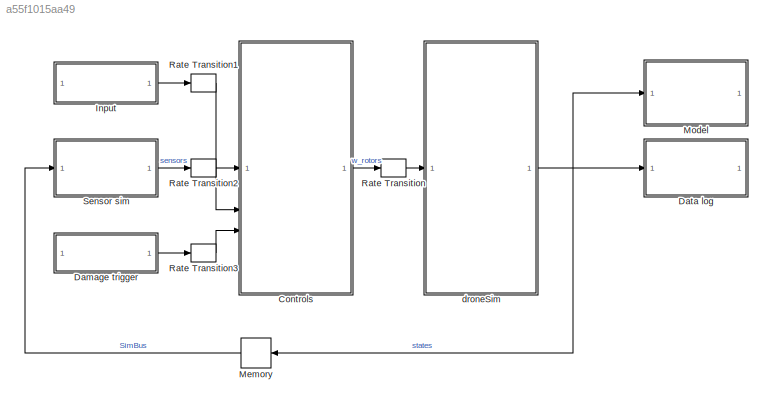
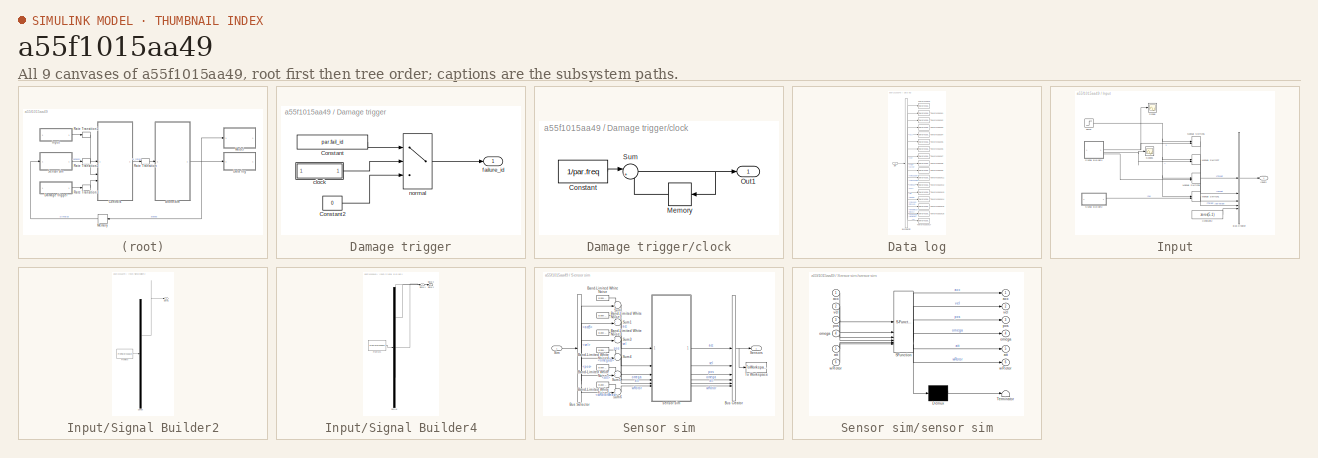
[diagram: thumbnail index - all 9 canvases of the model, root first then tree order]
MODEL slx_a55f1015aa49
KIND model
CONFIG AbsTol = auto
CONFIG EnableMultiTasking = off
CONFIG FixedStep = 1/simVars.freq
CONFIG MaxStep = auto
CONFIG MinStep = auto
CONFIG RelTol = 1e-3
CONFIG SampleTimeConstraint = Unconstrained
CONFIG SolverName = FixedStepAuto
CONFIG StartTime = 0.0
CONFIG StopTime = 20
BLOCK [ModelReference] Controls
  ModelNameDialog = controls.slx
  ModelReferenceVersion = 6.2
BLOCK [SubSystem] Damage trigger
BLOCK [Constant] Damage trigger/Constant
  Value = par.fail_id
BLOCK [Constant] Damage trigger/Constant2
  Value = 0
BLOCK [SubSystem] Damage trigger/clock
BLOCK [Constant] Damage trigger/clock/Constant
  Value = 1/par.freq
BLOCK [Memory] Damage trigger/clock/Memory
  NameLocation = top
BLOCK [Outport] Damage trigger/clock/Out1
  VectorParamsAs1DForOutWhenUnconnected = off
BLOCK [Sum] Damage trigger/clock/Sum
  Inputs = |++
BLOCK [Outport] Damage trigger/failure_id
  VectorParamsAs1DForOutWhenUnconnected = off
BLOCK [Switch] Damage trigger/normal
  Criteria = u2 > Threshold
  InputSameDT = off
  SaturateOnIntegerOverflow = off
  Threshold = par.fail_time
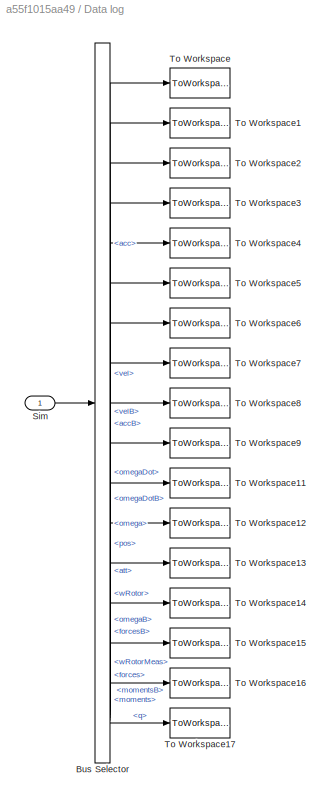
BLOCK [SubSystem] Data log
BLOCK [BusSelector] Data log/Bus Selector
  OutputSignals = acc,accB,vel,velB,pos,omegaDot,omegaDotB,omega,omegaB,att,wRotor,wRotorMeas,forces,forcesB,moments,momentsB,q
BLOCK [Inport] Data log/Sim
BLOCK [ToWorkspace] Data log/To Workspace
  FixptAsFi = on
  MaxDataPoints = inf
  SampleTime = -1
  SaveFormat = Timeseries
  VariableName = acc
BLOCK [ToWorkspace] Data log/To Workspace1
  FixptAsFi = on
  MaxDataPoints = inf
  SampleTime = -1
  SaveFormat = Timeseries
  VariableName = accB
BLOCK [ToWorkspace] Data log/To Workspace11
  FixptAsFi = on
  MaxDataPoints = inf
  SampleTime = -1
  SaveFormat = Timeseries
  VariableName = wRotor
BLOCK [ToWorkspace] Data log/To Workspace12
  FixptAsFi = on
  MaxDataPoints = inf
  SampleTime = -1
  SaveFormat = Timeseries
  VariableName = wRotorMeas
BLOCK [ToWorkspace] Data log/To Workspace13
  FixptAsFi = on
  MaxDataPoints = inf
  SampleTime = -1
  SaveFormat = Timeseries
  VariableName = forces
BLOCK [ToWorkspace] Data log/To Workspace14
  FixptAsFi = on
  MaxDataPoints = inf
  SampleTime = -1
  SaveFormat = Timeseries
  VariableName = forcesB
BLOCK [ToWorkspace] Data log/To Workspace15
  FixptAsFi = on
  MaxDataPoints = inf
  SampleTime = -1
  SaveFormat = Timeseries
  VariableName = moments
BLOCK [ToWorkspace] Data log/To Workspace16
  FixptAsFi = on
  MaxDataPoints = inf
  SampleTime = -1
  SaveFormat = Timeseries
  VariableName = momentsB
BLOCK [ToWorkspace] Data log/To Workspace17
  FixptAsFi = on
  MaxDataPoints = inf
  SampleTime = -1
  SaveFormat = Timeseries
  VariableName = quat
BLOCK [ToWorkspace] Data log/To Workspace2
  FixptAsFi = on
  MaxDataPoints = inf
  SampleTime = -1
  SaveFormat = Timeseries
  VariableName = vel
BLOCK [ToWorkspace] Data log/To Workspace3
  FixptAsFi = on
  MaxDataPoints = inf
  SampleTime = -1
  SaveFormat = Timeseries
  VariableName = velB
BLOCK [ToWorkspace] Data log/To Workspace4
  FixptAsFi = on
  MaxDataPoints = inf
  SampleTime = -1
  SaveFormat = Timeseries
  VariableName = pos
BLOCK [ToWorkspace] Data log/To Workspace5
  FixptAsFi = on
  MaxDataPoints = inf
  SampleTime = -1
  SaveFormat = Timeseries
  VariableName = omegaDot
BLOCK [ToWorkspace] Data log/To Workspace6
  FixptAsFi = on
  MaxDataPoints = inf
  SampleTime = -1
  SaveFormat = Timeseries
  VariableName = omegaDotB
BLOCK [ToWorkspace] Data log/To Workspace7
  FixptAsFi = on
  MaxDataPoints = inf
  SampleTime = -1
  SaveFormat = Timeseries
  VariableName = omega
BLOCK [ToWorkspace] Data log/To Workspace8
  FixptAsFi = on
  MaxDataPoints = inf
  SampleTime = -1
  SaveFormat = Timeseries
  VariableName = omegaB
BLOCK [ToWorkspace] Data log/To Workspace9
  FixptAsFi = on
  MaxDataPoints = inf
  SampleTime = -1
  SaveFormat = Timeseries
  VariableName = att
BLOCK [SubSystem] Input
BLOCK [BusCreator] Input/Bus Creator
  DisplayOption = bar
  InheritFromInputs = on
  Inputs = 5
  OutDataTypeStr = Bus: inputsBus
BLOCK [Constant] Input/Constant2
  Value = zeros(5,1)
BLOCK [Outport] Input/Inputs
  OutDataTypeStr = Bus: inputsBus
  VectorParamsAs1DForOutWhenUnconnected = off
BLOCK [ManualSwitch] Input/Manual Switch1
BLOCK [ManualSwitch] Input/Manual Switch6
  CurrentSetting = 0
BLOCK [ManualSwitch] Input/Manual Switch7
  CurrentSetting = 0
BLOCK [ManualSwitch] Input/Manual Switch8
BLOCK [Scope] Input/Scope
  Floating = off
  NumInputPorts = 1
  ScopeSpecificationString = Simulink.scopes.TimeScopeBlockCfg('CurrentConfiguration', extmgr.ConfigurationSet(extmgr.Configuration('Core','General UI',true),extmgr.Configuration('Core','Source UI',true),extmgr.Configuration('Sources','WiredSimulink',true,'DataLoggingVariableName','ScopeData1','DataLoggingSaveFormat','Array','DataLoggingDecimation','1','DataLoggingDecimateData',true),extmgr.Configuration('Visuals','Time Domai...<+1427ch>
BLOCK [Scope] Input/Scope1
  Floating = off
  NumInputPorts = 1
  ScopeSpecificationString = Simulink.scopes.TimeScopeBlockCfg('CurrentConfiguration', extmgr.ConfigurationSet(extmgr.Configuration('Core','General UI',true),extmgr.Configuration('Core','Source UI',true),extmgr.Configuration('Sources','WiredSimulink',true),extmgr.Configuration('Visuals','Time Domain',true,'SerializedDisplays',{struct('MinYLimReal','-2.5','MaxYLimReal','2.5','YLabelReal','','MinYLimMag','0.00000','MaxYLimMag',...<+1297ch>
BLOCK [SubSystem] Input/Signal Builder2
  ClipboardFcn = sigbuilder_block('clipboard');
  CloseFcn = sigbuilder_block('close');
  ContinueFcn = sigbuilder_block('continue');
  CopyFcn = sigbuilder_block('copy');
  DeleteFcn = sigbuilder_block('delete');
  LoadFcn = sigbuilder_block('load');
  MaskHideContents = on
  ModelCloseFcn = sigbuilder_block('modelClose');
  NameChangeFcn = sigbuilder_block('namechange');
  OpenFcn = sigbuilder_block('open',[192.75 285.75 558 394.5 ]);
  PauseFcn = sigbuilder_block('pause');
  PreSaveFcn = sigbuilder_block('preSave');
  StartFcn = sigbuilder_block('start');
  StopFcn = sigbuilder_block('stop');
  Tag = STV Subsys
BLOCK [Demux] Input/Signal Builder2/Demux
  DisplayOption = none
  Outputs = 1
  Tag = STV Demux
BLOCK [FromWorkspace] Input/Signal Builder2/FromWs
  Tag = STV FromWs
  VariableName = tuvar
BLOCK [Outport] Input/Signal Builder2/Signal 1
  Tag = STV Outport
  VectorParamsAs1DForOutWhenUnconnected = off
BLOCK [SubSystem] Input/Signal Builder4
  ClipboardFcn = sigbuilder_block('clipboard');
  CloseFcn = sigbuilder_block('close');
  ContinueFcn = sigbuilder_block('continue');
  CopyFcn = sigbuilder_block('copy');
  DeleteFcn = sigbuilder_block('delete');
  LoadFcn = sigbuilder_block('load',[795 -18 637.5 373.5 ]);
  MaskHideContents = on
  ModelCloseFcn = sigbuilder_block('modelClose');
  NameChangeFcn = sigbuilder_block('namechange');
  OpenFcn = sigbuilder_block('open',[798.75 -9 637.5 373.5 ]);
  PauseFcn = sigbuilder_block('pause');
  PreSaveFcn = sigbuilder_block('preSave');
  StartFcn = sigbuilder_block('start');
  StopFcn = sigbuilder_block('stop');
  Tag = STV Subsys
BLOCK [Demux] Input/Signal Builder4/Demux
  DisplayOption = none
  Outputs = 3
  Tag = STV Demux
BLOCK [FromWorkspace] Input/Signal Builder4/FromWs
  Tag = STV FromWs
  VariableName = tuvar
BLOCK [Outport] Input/Signal Builder4/Signal 1
  Tag = STV Outport
  VectorParamsAs1DForOutWhenUnconnected = off
BLOCK [Outport] Input/Signal Builder4/Signal 2
  Port = 2
  Tag = STV Outport
  VectorParamsAs1DForOutWhenUnconnected = off
BLOCK [Outport] Input/Signal Builder4/Signal 3
  Port = 3
  Tag = STV Outport
BLOCK [Step] Input/zero1
  After = 0
  SampleTime = 0
  Time = 50
BLOCK [Memory] Memory
  NameLocation = top
BLOCK [ModelReference] Model
  ModelNameDialog = visualise.slx
  ModelReferenceVersion = 1.52
BLOCK [RateTransition] Rate Transition
  OutPortSampleTime = 1/simVars.freq
BLOCK [RateTransition] Rate Transition1
  OutPortSampleTime = 1/par.freq
BLOCK [RateTransition] Rate Transition2
  OutPortSampleTime = 1/par.freq
BLOCK [RateTransition] Rate Transition3
  OutPortSampleTime = 1/par.freq
BLOCK [SubSystem] Sensor sim
BLOCK [Reference] Sensor sim/Band-Limited White Noise  REF=simulink/Sources/Band-Limited
White Noise
  SourceBlock = simulink/Sources/Band-Limited\nWhite Noise
  SourceType = Band-Limited White Noise.
BLOCK [Reference] Sensor sim/Band-Limited White Noise1  REF=simulink/Sources/Band-Limited
White Noise
  SourceBlock = simulink/Sources/Band-Limited\nWhite Noise
  SourceType = Band-Limited White Noise.
BLOCK [Reference] Sensor sim/Band-Limited White Noise3  REF=simulink/Sources/Band-Limited
White Noise
  SourceBlock = simulink/Sources/Band-Limited\nWhite Noise
  SourceType = Band-Limited White Noise.
BLOCK [Reference] Sensor sim/Band-Limited White Noise4  REF=simulink/Sources/Band-Limited
White Noise
  SourceBlock = simulink/Sources/Band-Limited\nWhite Noise
  SourceType = Band-Limited White Noise.
BLOCK [Reference] Sensor sim/Band-Limited White Noise5  REF=simulink/Sources/Band-Limited
White Noise
  SourceBlock = simulink/Sources/Band-Limited\nWhite Noise
  SourceType = Band-Limited White Noise.
BLOCK [Reference] Sensor sim/Band-Limited White Noise6  REF=simulink/Sources/Band-Limited
White Noise
  SourceBlock = simulink/Sources/Band-Limited\nWhite Noise
  SourceType = Band-Limited White Noise.
BLOCK [BusCreator] Sensor sim/Bus Creator
  DisplayOption = bar
  InheritFromInputs = off
  Inputs = 6
  OutDataTypeStr = Bus: sensorsBus
BLOCK [BusSelector] Sensor sim/Bus Selector
  OutputSignals = accB,vel,pos,omegaB,att,wRotorMeas
BLOCK [Outport] Sensor sim/Sensors
  OutDataTypeStr = Bus: sensorsBus
  VectorParamsAs1DForOutWhenUnconnected = off
BLOCK [Inport] Sensor sim/Sim
BLOCK [Sum] Sensor sim/Sum
  Inputs = ++|
BLOCK [Sum] Sensor sim/Sum1
  Inputs = ++|
BLOCK [Sum] Sensor sim/Sum3
  Inputs = ++|
BLOCK [Sum] Sensor sim/Sum4
  Inputs = ++|
BLOCK [Sum] Sensor sim/Sum5
  Inputs = ++|
BLOCK [Sum] Sensor sim/Sum6
  Inputs = ++|
BLOCK [ToWorkspace] Sensor sim/To Workspace
  FixptAsFi = on
  MaxDataPoints = inf
  SampleTime = -1
  SaveFormat = Timeseries
  VariableName = sensorsOut
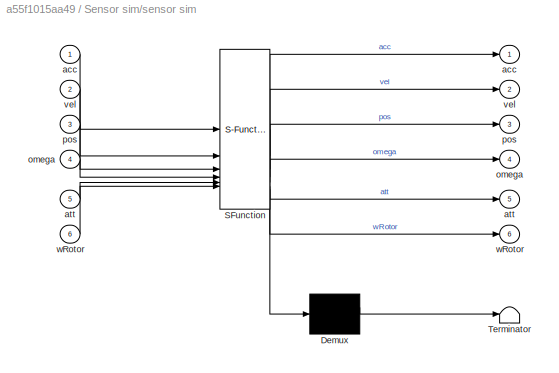
BLOCK [SubSystem] Sensor sim/sensor sim
  ErrorFcn = Stateflow.Translate.translate
  PermitHierarchicalResolution = ExplicitOnly
  SFBlockType = MATLAB Function
  TreatAsAtomicUnit = on
BLOCK [Demux] Sensor sim/sensor sim/ Demux 
  Outputs = 1
BLOCK [S-Function] Sensor sim/sensor sim/ SFunction 
  EnableBusSupport = on
  FunctionName = sf_sfun
  Parameters = simVars
  PortCounts = [6 7]
  SFcnIsStateOwnerBlock = off
  SFunctionDeploymentMode = off
  Tag = Stateflow S-Function 2
BLOCK [Terminator] Sensor sim/sensor sim/ Terminator 
BLOCK [Outport] Sensor sim/sensor sim/acc
  VectorParamsAs1DForOutWhenUnconnected = off
BLOCK [Inport] Sensor sim/sensor sim/acc 
BLOCK [Outport] Sensor sim/sensor sim/att
  Port = 5
  VectorParamsAs1DForOutWhenUnconnected = off
BLOCK [Inport] Sensor sim/sensor sim/att 
  Port = 5
BLOCK [Outport] Sensor sim/sensor sim/omega
  Port = 4
  VectorParamsAs1DForOutWhenUnconnected = off
BLOCK [Inport] Sensor sim/sensor sim/omega 
  Port = 4
BLOCK [Outport] Sensor sim/sensor sim/pos
  Port = 3
  VectorParamsAs1DForOutWhenUnconnected = off
BLOCK [Inport] Sensor sim/sensor sim/pos 
  Port = 3
BLOCK [Outport] Sensor sim/sensor sim/vel
  Port = 2
  VectorParamsAs1DForOutWhenUnconnected = off
BLOCK [Inport] Sensor sim/sensor sim/vel 
  Port = 2
BLOCK [Outport] Sensor sim/sensor sim/wRotor
  Port = 6
  VectorParamsAs1DForOutWhenUnconnected = off
BLOCK [Inport] Sensor sim/sensor sim/wRotor 
  Port = 6
BLOCK [ModelReference] droneSim
  ModelNameDialog = droneSim
  ModelReferenceVersion = 6.1
LINE Controls:1 -> Rate Transition:1
LINE Damage trigger/Constant2:1 -> Damage trigger/normal:3
LINE Damage trigger/Constant:1 -> Damage trigger/normal:1
LINE Damage trigger/clock/Constant:1 -> Damage trigger/clock/Sum:1
LINE Damage trigger/clock/Memory:1 -> Damage trigger/clock/Sum:2
NET Damage trigger/clock/Sum:1 -> Damage trigger/clock/Memory:1, Damage trigger/clock/Out1:1
LINE Damage trigger/clock:1 -> Damage trigger/normal:2
LINE Damage trigger/normal:1 -> Damage trigger/failure_id:1
LINE Damage trigger:1 -> Rate Transition3:1
LINE Data log/Bus Selector:1 -> Data log/To Workspace:1
LINE Data log/Bus Selector:10 -> Data log/To Workspace9:1
LINE Data log/Bus Selector:11 -> Data log/To Workspace11:1
LINE Data log/Bus Selector:12 -> Data log/To Workspace12:1
LINE Data log/Bus Selector:13 -> Data log/To Workspace13:1
LINE Data log/Bus Selector:14 -> Data log/To Workspace14:1
LINE Data log/Bus Selector:15 -> Data log/To Workspace15:1
LINE Data log/Bus Selector:16 -> Data log/To Workspace16:1
LINE Data log/Bus Selector:17 -> Data log/To Workspace17:1
LINE Data log/Bus Selector:2 -> Data log/To Workspace1:1
LINE Data log/Bus Selector:3 -> Data log/To Workspace2:1
LINE Data log/Bus Selector:4 -> Data log/To Workspace3:1
LINE Data log/Bus Selector:5 -> Data log/To Workspace4:1
LINE Data log/Bus Selector:6 -> Data log/To Workspace5:1
LINE Data log/Bus Selector:7 -> Data log/To Workspace6:1
LINE Data log/Bus Selector:8 -> Data log/To Workspace7:1
LINE Data log/Bus Selector:9 -> Data log/To Workspace8:1
LINE Data log/Sim:1 -> Data log/Bus Selector:1
LINE Input/Bus Creator:1 -> Input/Inputs:1
LINE Input/Constant2:1 -> Input/Bus Creator:5
LINE Input/Manual Switch1:1 -> Input/Bus Creator:4
LINE Input/Manual Switch6:1 -> Input/Bus Creator:1
LINE Input/Manual Switch7:1 -> Input/Bus Creator:2
LINE Input/Manual Switch8:1 -> Input/Bus Creator:3
LINE Input/Signal Builder2:1 -> Input/Manual Switch1:2
NET Input/Signal Builder4:1 -> Input/Manual Switch6:2, Input/Scope:1
NET Input/Signal Builder4:2 -> Input/Manual Switch7:2, Input/Scope1:1
LINE Input/Signal Builder4:3 -> Input/Manual Switch8:2
NET Input/zero1:1 -> Input/Manual Switch1:1, Input/Manual Switch6:1, Input/Manual Switch7:1, Input/Manual Switch8:1
LINE Input:1 -> Rate Transition1:1
LINE Memory:1 -> Sensor sim:1
LINE Rate Transition1:1 -> Controls:1
LINE Rate Transition2:1 -> Controls:2
LINE Rate Transition3:1 -> Controls:3
LINE Rate Transition:1 -> droneSim:1
LINE Sensor sim/Band-Limited White Noise1:1 -> Sensor sim/Sum1:1
LINE Sensor sim/Band-Limited White Noise3:1 -> Sensor sim/Sum3:1
LINE Sensor sim/Band-Limited White Noise4:1 -> Sensor sim/Sum4:1
LINE Sensor sim/Band-Limited White Noise5:1 -> Sensor sim/Sum5:1
LINE Sensor sim/Band-Limited White Noise6:1 -> Sensor sim/Sum6:1
LINE Sensor sim/Band-Limited White Noise:1 -> Sensor sim/Sum:1
NET Sensor sim/Bus Creator:1 -> Sensor sim/Sensors:1, Sensor sim/To Workspace:1
LINE Sensor sim/Bus Selector:1 -> Sensor sim/Sum:2
LINE Sensor sim/Bus Selector:2 -> Sensor sim/Sum1:2
LINE Sensor sim/Bus Selector:3 -> Sensor sim/Sum3:2
LINE Sensor sim/Bus Selector:4 -> Sensor sim/Sum4:2
LINE Sensor sim/Bus Selector:5 -> Sensor sim/Sum5:2
LINE Sensor sim/Bus Selector:6 -> Sensor sim/Sum6:2
LINE Sensor sim/Sim:1 -> Sensor sim/Bus Selector:1
LINE Sensor sim/Sum1:1 -> Sensor sim/sensor sim:2
LINE Sensor sim/Sum3:1 -> Sensor sim/sensor sim:3
LINE Sensor sim/Sum4:1 -> Sensor sim/sensor sim:4
LINE Sensor sim/Sum5:1 -> Sensor sim/sensor sim:5
LINE Sensor sim/Sum6:1 -> Sensor sim/sensor sim:6
LINE Sensor sim/Sum:1 -> Sensor sim/sensor sim:1
LINE Sensor sim/sensor sim:1 -> Sensor sim/Bus Creator:1
LINE Sensor sim/sensor sim:2 -> Sensor sim/Bus Creator:2
LINE Sensor sim/sensor sim:3 -> Sensor sim/Bus Creator:3
LINE Sensor sim/sensor sim:4 -> Sensor sim/Bus Creator:4
LINE Sensor sim/sensor sim:5 -> Sensor sim/Bus Creator:5
LINE Sensor sim/sensor sim:6 -> Sensor sim/Bus Creator:6
LINE Sensor sim:1 -> Rate Transition2:1
NET droneSim:1 -> Data log:1, Memory:1, Model:1
note: NET lines group one-source signal fan-out (src -> all destinations, sorted); 1:1 wires keep LINE
CHART Sensor sim/sensor sim states=1 transitions=1
  STATE_LABEL 'eML_blk_kernel()'
  STATE_LABEL "SCRIPT:\nfunction [acc, vel, pos, omega, att, wRotor] = sensorSim(acc, vel, pos, omega, att, wRotor, simVars)\n\n%% add bias to IMU\nomega = omega + simVars.sensor.omega_bias';\nacc = acc + simVars.sensor.acc_bias';\n\nend\n"
CHART  states=0 transitions=0
